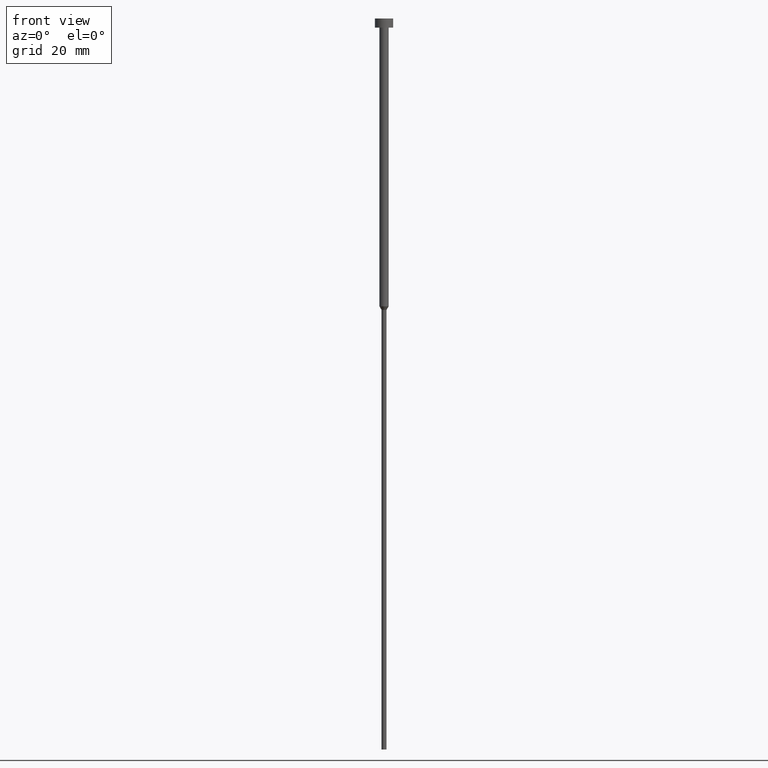
[diagram: clean part render]
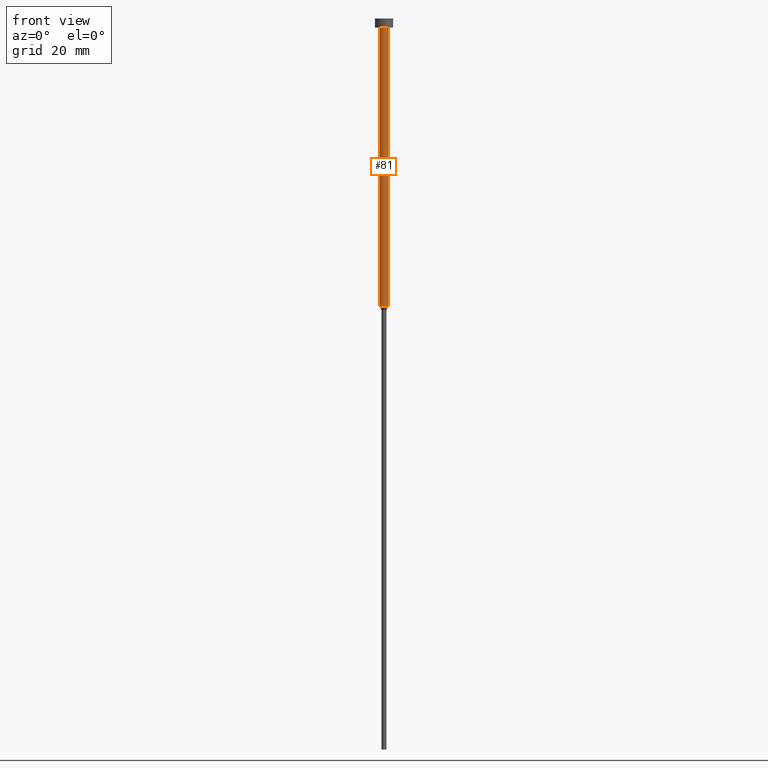
[diagram: same view with one face highlighted and labeled with its STEP entity id]
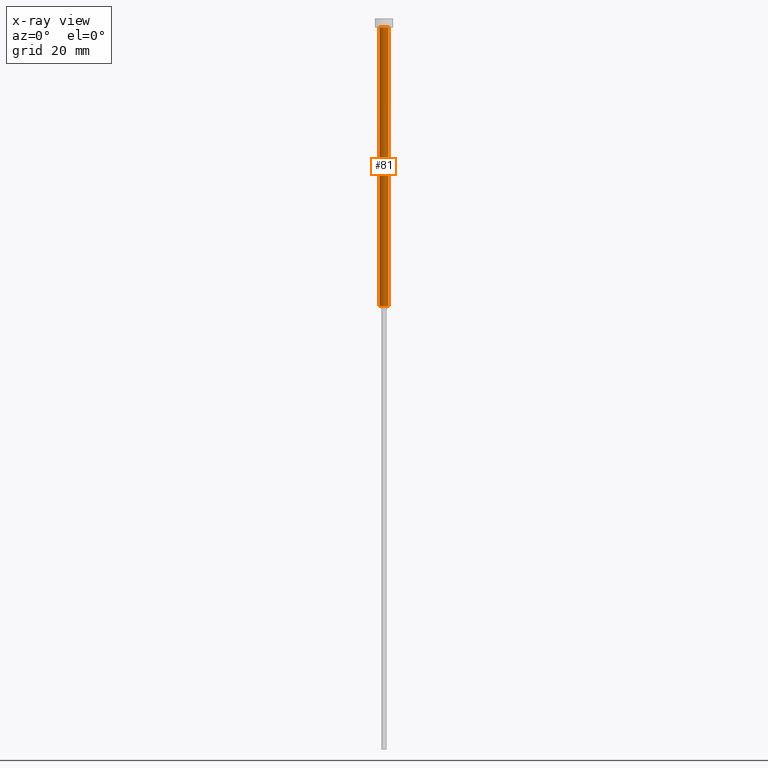
[diagram: x-ray of the same camera — body ghosted, the highlighted face saturated]
A machine part, front view. The second image highlights one B-rep face of the part: STEP entity #81.
The next image is the same camera in x-ray: the body ghosted, the highlighted face saturated — about 0% of this face is hidden behind the body in this view.
In plain terms, the highlighted cylindrical surface (edge-blend (fillet) strip) has radius 1 mm, axis along (-0, -0, 1).
Its self-contained STEP definition (entity closure, byte-faithful):
#2 = VECTOR ( 'NONE', #203, 1000.000000000000000 ) ;
#3 = CARTESIAN_POINT ( 'NONE',  ( -1.000000000000003331, 1.224646799147357151E-16, 0.000000000000000000 ) ) ;
#15 = VERTEX_POINT ( 'NONE', #133 ) ;
#18 = FACE_OUTER_BOUND ( 'NONE', #230, .T. ) ;
#27 = DIRECTION ( 'NONE',  ( -0.000000000000000000, -0.000000000000000000, 1.000000000000000000 ) ) ;
#31 = LINE ( 'NONE', #222, #227 ) ;
#32 = CARTESIAN_POINT ( 'NONE',  ( -1.000000000000003553, 1.224646799147357398E-16, -2.000000000000000444 ) ) ;
#48 = ORIENTED_EDGE ( 'NONE', *, *, #181, .F. ) ;
#61 = VERTEX_POINT ( 'NONE', #109 ) ;
#72 = EDGE_CURVE ( 'NONE', #15, #61, #328, .T. ) ;
#81 = ADVANCED_FACE ( 'NONE', ( #18 ), #131, .T. ) ;
#93 = VERTEX_POINT ( 'NONE', #32 ) ;
#109 = CARTESIAN_POINT ( 'NONE',  ( 1.000000000000003109, 0.000000000000000000, -63.00000000000000000 ) ) ;
#121 = CARTESIAN_POINT ( 'NONE',  ( 1.000000000000003553, 0.000000000000000000, -2.000000000000000444 ) ) ;
#122 = LINE ( 'NONE', #3, #2 ) ;
#131 = CYLINDRICAL_SURFACE ( 'NONE', #221, 1.000000000000003331 ) ;
#133 = CARTESIAN_POINT ( 'NONE',  ( -1.000000000000003109, 1.224646799147356905E-16, -63.00000000000000000 ) ) ;
#139 = DIRECTION ( 'NONE',  ( 1.000000000000000000, 0.000000000000000000, 0.000000000000000000 ) ) ;
#141 = CARTESIAN_POINT ( 'NONE',  ( 0.000000000000000000, 0.000000000000000000, -2.000000000000000444 ) ) ;
#146 = EDGE_CURVE ( 'NONE', #61, #301, #31, .T. ) ;
#164 = AXIS2_PLACEMENT_3D ( 'NONE', #141, #306, #254 ) ;
#165 = ORIENTED_EDGE ( 'NONE', *, *, #146, .T. ) ;
#181 = EDGE_CURVE ( 'NONE', #93, #301, #293, .T. ) ;
#203 = DIRECTION ( 'NONE',  ( -0.000000000000000000, -0.000000000000000000, 1.000000000000000000 ) ) ;
#210 = EDGE_CURVE ( 'NONE', #15, #93, #122, .T. ) ;
#212 = ORIENTED_EDGE ( 'NONE', *, *, #210, .F. ) ;
#214 = CARTESIAN_POINT ( 'NONE',  ( 0.000000000000000000, 0.000000000000000000, 0.000000000000000000 ) ) ;
#221 = AXIS2_PLACEMENT_3D ( 'NONE', #214, #343, #139 ) ;
#222 = CARTESIAN_POINT ( 'NONE',  ( 1.000000000000003331, 0.000000000000000000, 0.000000000000000000 ) ) ;
#225 = ORIENTED_EDGE ( 'NONE', *, *, #72, .T. ) ;
#227 = VECTOR ( 'NONE', #27, 1000.000000000000000 ) ;
#230 = EDGE_LOOP ( 'NONE', ( #212, #225, #165, #48 ) ) ;
#254 = DIRECTION ( 'NONE',  ( 1.000000000000000000, 0.000000000000000000, 0.000000000000000000 ) ) ;
#260 = AXIS2_PLACEMENT_3D ( 'NONE', #273, #324, #290 ) ;
#273 = CARTESIAN_POINT ( 'NONE',  ( 0.000000000000000000, 0.000000000000000000, -63.00000000000000000 ) ) ;
#290 = DIRECTION ( 'NONE',  ( 1.000000000000000000, 0.000000000000000000, 0.000000000000000000 ) ) ;
#293 = CIRCLE ( 'NONE', #164, 1.000000000000003553 ) ;
#301 = VERTEX_POINT ( 'NONE', #121 ) ;
#306 = DIRECTION ( 'NONE',  ( -0.000000000000000000, -0.000000000000000000, 1.000000000000000000 ) ) ;
#324 = DIRECTION ( 'NONE',  ( -0.000000000000000000, -0.000000000000000000, 1.000000000000000000 ) ) ;
#328 = CIRCLE ( 'NONE', #260, 1.000000000000003109 ) ;
#343 = DIRECTION ( 'NONE',  ( -0.000000000000000000, -0.000000000000000000, 1.000000000000000000 ) ) ;